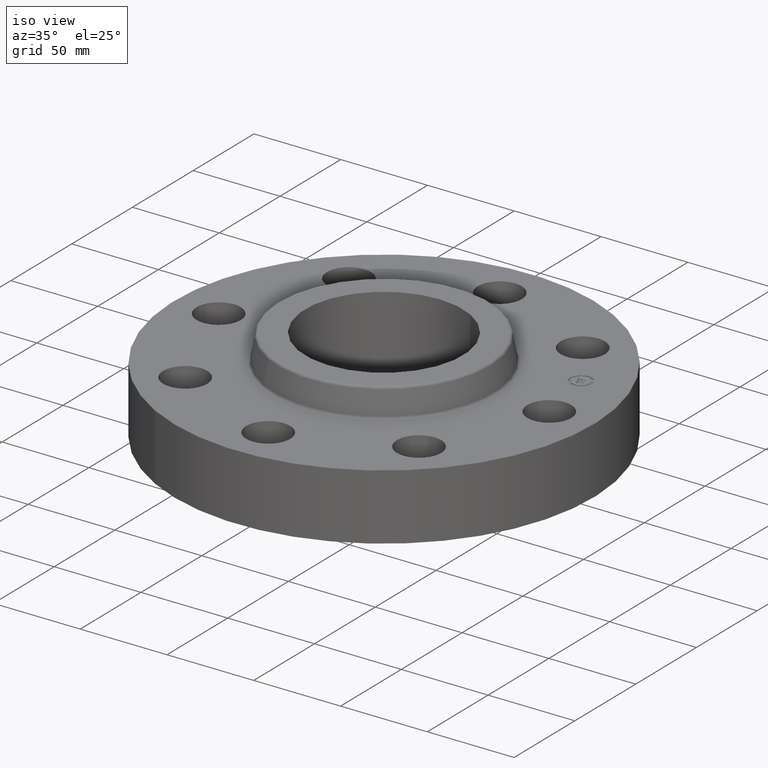
[diagram: clean part render]
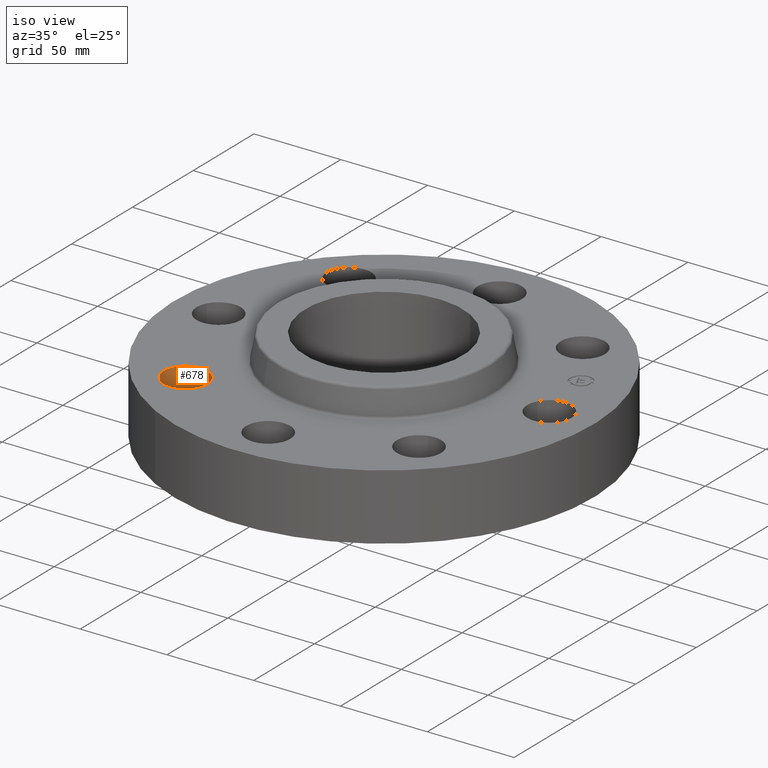
[diagram: same view with one face highlighted and labeled with its STEP entity id]
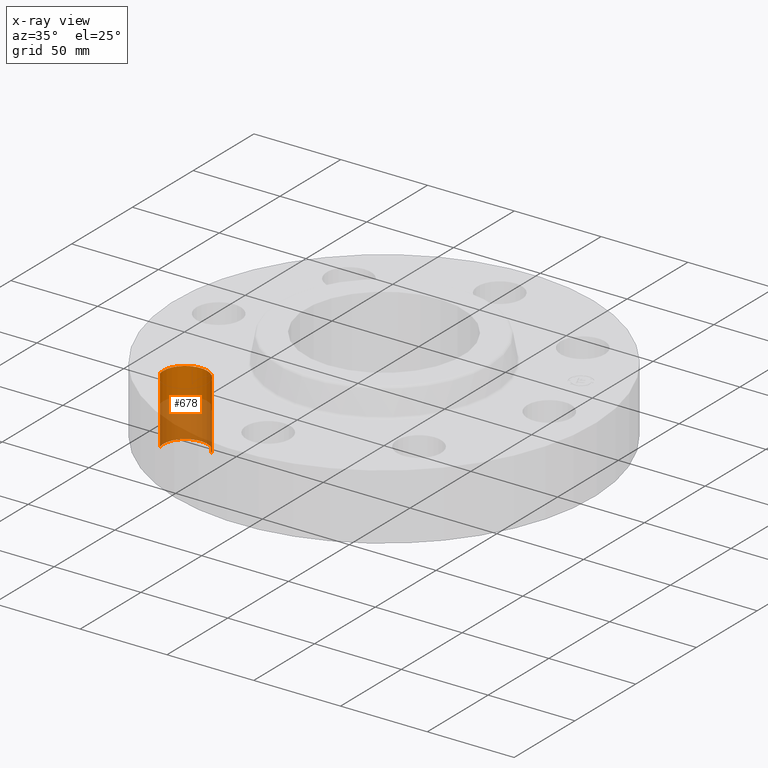
[diagram: x-ray of the same camera — body ghosted, the highlighted face saturated]
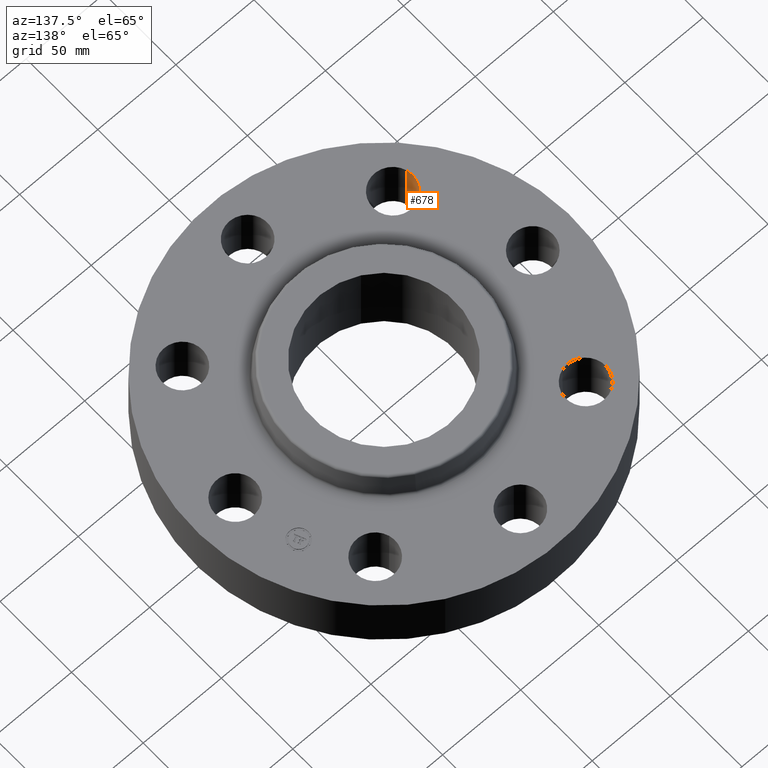
[diagram: same view with one face highlighted and labeled with its STEP entity id]
A machine part, iso view. The second image highlights one B-rep face of the part: STEP entity #678.
The next image is the same camera in x-ray: the body ghosted, the highlighted face saturated — about 59% of this face is hidden behind the body in this view.
A second angle (auxiliary view) of the same face is appended — the face is thin or edge-on in the first view.
In plain terms, the highlighted cylindrical surface (edge-blend (fillet) strip) has radius 12.7 mm, axis along (-0, 0, -1).
Its self-contained STEP definition (entity closure, byte-faithful):
#427=AXIS2_PLACEMENT_3D('Circle Axis2P3D',#425,#426,$) ;
#639=AXIS2_PLACEMENT_3D('Cylinder Axis2P3D',#636,#637,#638) ;
#669=AXIS2_PLACEMENT_3D('Circle Axis2P3D',#667,#668,$) ;
#420=CARTESIAN_POINT('Vertex',(-2.17187561447,-2.51088066389,0.)) ;
#422=CARTESIAN_POINT('Vertex',(-3.13142524445,-2.79242019503,0.)) ;
#425=CARTESIAN_POINT('Axis2P3D Location',(-2.65165042946,-2.65165042946,0.)) ;
#636=CARTESIAN_POINT('Axis2P3D Location',(-2.65165042946,-2.65165042946,1.49606299213)) ;
#641=CARTESIAN_POINT('Line Origine',(-2.17187561447,-2.51088066389,0.750000000003)) ;
#645=CARTESIAN_POINT('Vertex',(-2.17187561447,-2.51088066389,1.50000000001)) ;
#648=CARTESIAN_POINT('Line Origine',(-3.13142524445,-2.79242019503,0.750000000003)) ;
#652=CARTESIAN_POINT('Vertex',(-3.13142524445,-2.79242019503,1.50000000001)) ;
#667=CARTESIAN_POINT('Axis2P3D Location',(-2.65165042946,-2.65165042946,1.50000000001)) ;
#426=DIRECTION('Axis2P3D Direction',(0.,0.,-0.0393700787402)) ;
#637=DIRECTION('Axis2P3D Direction',(-0.,0.,-0.0393700787402)) ;
#638=DIRECTION('Axis2P3D XDirection',(-0.0377775444876,-0.0110842335096,0.)) ;
#642=DIRECTION('Vector Direction',(0.,0.,-0.0393700787402)) ;
#649=DIRECTION('Vector Direction',(0.,0.,-0.0393700787402)) ;
#668=DIRECTION('Axis2P3D Direction',(-0.,0.,-0.0393700787402)) ;
#643=VECTOR('Line Direction',#642,0.0393700787402) ;
#650=VECTOR('Line Direction',#649,0.0393700787402) ;
#673=ORIENTED_EDGE('',*,*,#654,.F.) ;
#674=ORIENTED_EDGE('',*,*,#429,.T.) ;
#675=ORIENTED_EDGE('',*,*,#647,.T.) ;
#676=ORIENTED_EDGE('',*,*,#671,.F.) ;
#678=ADVANCED_FACE('PartBody',(#677),#640,.F.) ;
#428=CIRCLE('generated circle',#427,0.500000000002) ;
#670=CIRCLE('generated circle',#669,0.500000000002) ;
#640=CYLINDRICAL_SURFACE('generated cylinder',#639,0.500000000002) ;
#429=EDGE_CURVE('',#423,#421,#428,.T.) ;
#647=EDGE_CURVE('',#421,#646,#644,.F.) ;
#654=EDGE_CURVE('',#423,#653,#651,.F.) ;
#671=EDGE_CURVE('',#653,#646,#670,.T.) ;
#672=EDGE_LOOP('',(#673,#674,#675,#676)) ;
#677=FACE_OUTER_BOUND('',#672,.T.) ;
#644=LINE('Line',#641,#643) ;
#651=LINE('Line',#648,#650) ;
#421=VERTEX_POINT('',#420) ;
#423=VERTEX_POINT('',#422) ;
#646=VERTEX_POINT('',#645) ;
#653=VERTEX_POINT('',#652) ;